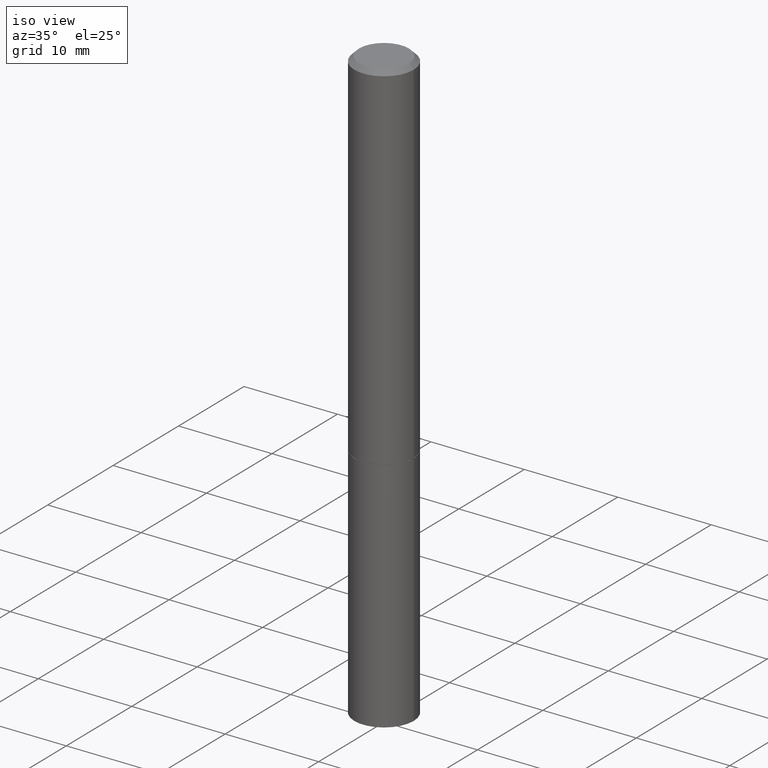
[diagram: clean part render]
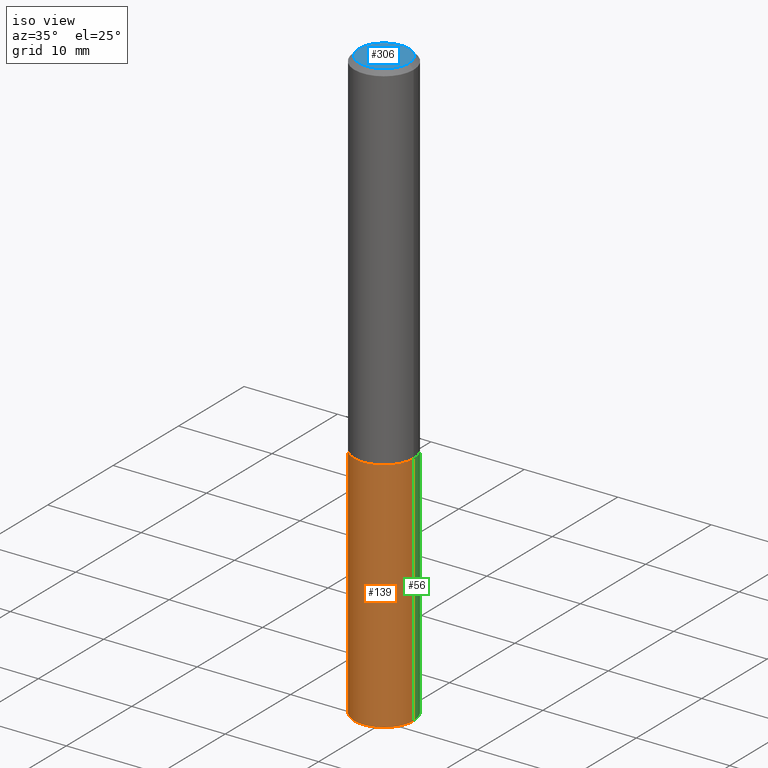
[diagram: same view with three faces highlighted in distinct colors, each labeled with its STEP entity id]
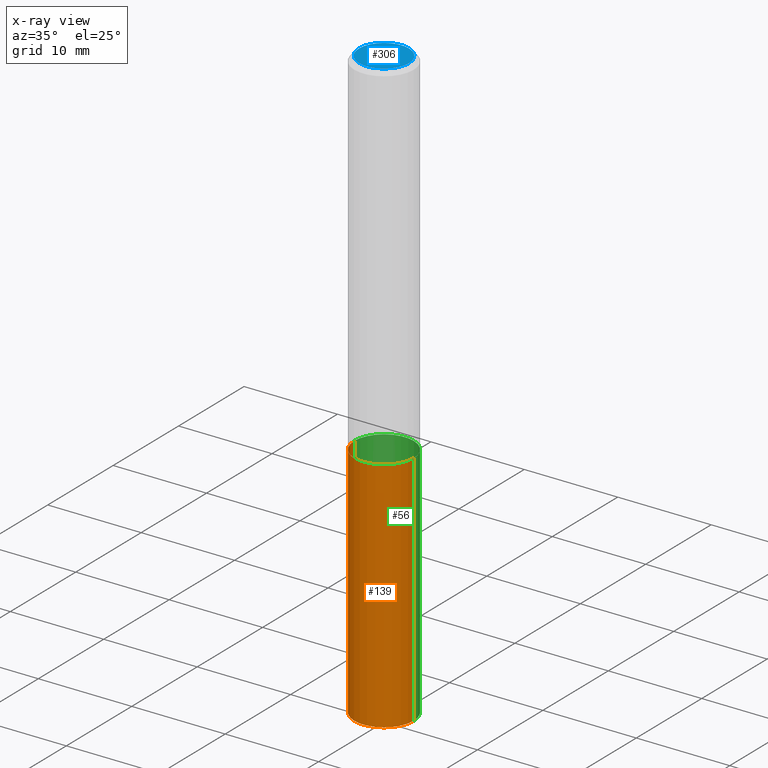
[diagram: x-ray of the same camera — body ghosted, the three highlighted faces saturated]
A machine part, iso view with three faces highlighted in distinct colors.
The next image is the same camera in x-ray (body ghosted, the three faces saturated) — at least one of them is partly hidden behind the body in this view.
Their STEP definitions:

[orange] entity #139 — the highlighted cylindrical surface (edge-blend (fillet) strip) has radius 3.175 mm, axis along (-0, 0, 1).
#10 = ORIENTED_EDGE ( 'NONE', *, *, #73, .T. ) ;
#12 = DIRECTION ( 'NONE',  ( 1.000000000000000000, -6.982962677686270655E-15, 0.000000000000000000 ) ) ;
#13 = ORIENTED_EDGE ( 'NONE', *, *, #134, .F. ) ;
#25 = VECTOR ( 'NONE', #226, 39.37007874015748143 ) ;
#57 = CARTESIAN_POINT ( 'NONE',  ( -0.1250000000000000000, -6.094784257986165933E-15, -2.500000000000000000 ) ) ;
#69 = AXIS2_PLACEMENT_3D ( 'NONE', #194, #188, #329 ) ;
#73 = EDGE_CURVE ( 'NONE', #338, #118, #319, .T. ) ;
#79 = FACE_OUTER_BOUND ( 'NONE', #272, .T. ) ;
#89 = VERTEX_POINT ( 'NONE', #296 ) ;
#104 = DIRECTION ( 'NONE',  ( -2.445468806185136877E-29, 3.491481338843145188E-15, 1.000000000000000000 ) ) ;
#118 = VERTEX_POINT ( 'NONE', #227 ) ;
#119 = AXIS2_PLACEMENT_3D ( 'NONE', #249, #163, #220 ) ;
#127 = EDGE_CURVE ( 'NONE', #338, #211, #162, .T. ) ;
#134 = EDGE_CURVE ( 'NONE', #211, #89, #159, .T. ) ;
#136 = CARTESIAN_POINT ( 'NONE',  ( 0.1250000000000000000, -8.728703347107833388E-16, 6.095220969744919741E-30 ) ) ;
#137 = CYLINDRICAL_SURFACE ( 'NONE', #119, 0.1250000000000000000 ) ;
#139 = ADVANCED_FACE ( 'NONE', ( #79 ), #137, .T. ) ;
#148 = CARTESIAN_POINT ( 'NONE',  ( 6.113672015462842613E-29, -8.728703347107864943E-15, -2.500000000000000000 ) ) ;
#159 = CIRCLE ( 'NONE', #69, 0.1250000000000000000 ) ;
#162 = LINE ( 'NONE', #257, #285 ) ;
#163 = DIRECTION ( 'NONE',  ( -2.445468806185136597E-29, 3.491481338843145583E-15, 1.000000000000000000 ) ) ;
#188 = DIRECTION ( 'NONE',  ( -2.445468806185136597E-29, 3.491481338843145583E-15, 1.000000000000000000 ) ) ;
#194 = CARTESIAN_POINT ( 'NONE',  ( 3.668203209277704895E-29, -5.237222008264718177E-15, -1.500000000000000222 ) ) ;
#211 = VERTEX_POINT ( 'NONE', #284 ) ;
#215 = DIRECTION ( 'NONE',  ( -2.445468806185136597E-29, 3.491481338843145583E-15, 1.000000000000000000 ) ) ;
#220 = DIRECTION ( 'NONE',  ( 1.000000000000000000, -6.982962677686266711E-15, 4.876176775795935793E-29 ) ) ;
#226 = DIRECTION ( 'NONE',  ( -2.445468806185136877E-29, 3.491481338843145188E-15, 1.000000000000000000 ) ) ;
#227 = CARTESIAN_POINT ( 'NONE',  ( 0.1250000000000000000, -9.601573681818648281E-15, -2.500000000000000000 ) ) ;
#237 = EDGE_CURVE ( 'NONE', #118, #89, #364, .T. ) ;
#249 = CARTESIAN_POINT ( 'NONE',  ( 0.000000000000000000, 0.000000000000000000, 0.000000000000000000 ) ) ;
#257 = CARTESIAN_POINT ( 'NONE',  ( -0.1250000000000000000, 8.881784197001252323E-16, -6.148668862818632227E-30 ) ) ;
#272 = EDGE_LOOP ( 'NONE', ( #278, #10, #348, #13 ) ) ;
#278 = ORIENTED_EDGE ( 'NONE', *, *, #127, .F. ) ;
#284 = CARTESIAN_POINT ( 'NONE',  ( -0.1250000000000000000, -6.094784257986165933E-15, -1.500000000000000222 ) ) ;
#285 = VECTOR ( 'NONE', #104, 39.37007874015748143 ) ;
#296 = CARTESIAN_POINT ( 'NONE',  ( 0.1250000000000000000, -6.110092342975501516E-15, -1.500000000000000222 ) ) ;
#319 = CIRCLE ( 'NONE', #342, 0.1250000000000000000 ) ;
#329 = DIRECTION ( 'NONE',  ( 1.000000000000000000, -6.982962677686262766E-15, 0.000000000000000000 ) ) ;
#338 = VERTEX_POINT ( 'NONE', #57 ) ;
#342 = AXIS2_PLACEMENT_3D ( 'NONE', #148, #215, #12 ) ;
#348 = ORIENTED_EDGE ( 'NONE', *, *, #237, .T. ) ;
#364 = LINE ( 'NONE', #136, #25 ) ;

[blue] entity #306 — the highlighted planar face has unit normal (0, -0, -1).
#41 = ORIENTED_EDGE ( 'NONE', *, *, #61, .T. ) ;
#61 = EDGE_CURVE ( 'NONE', #98, #266, #95, .T. ) ;
#75 = DIRECTION ( 'NONE',  ( 1.000000000000000000, -6.982962677686266711E-15, 4.876206205277401876E-29 ) ) ;
#83 = PLANE ( 'NONE',  #242 ) ;
#95 = CIRCLE ( 'NONE', #267, 0.1049999999999998296 ) ;
#98 = VERTEX_POINT ( 'NONE', #361 ) ;
#102 = CARTESIAN_POINT ( 'NONE',  ( 0.1049999999999998296, -8.238720831321564811E-16, -1.707404996039620013E-17 ) ) ;
#110 = DIRECTION ( 'NONE',  ( 2.438088387897960049E-29, -3.491481338843145188E-15, -1.000000000000000000 ) ) ;
#113 = CARTESIAN_POINT ( 'NONE',  ( 7.332110811570568410E-16, 0.1049999999999998296, -3.751425655587305558E-16 ) ) ;
#144 = ORIENTED_EDGE ( 'NONE', *, *, #166, .T. ) ;
#155 = CARTESIAN_POINT ( 'NONE',  ( 4.175405657340879278E-46, -5.961372681521788801E-32, -1.707404996040164512E-17 ) ) ;
#165 = CIRCLE ( 'NONE', #199, 0.1049999999999998296 ) ;
#166 = EDGE_CURVE ( 'NONE', #266, #98, #165, .T. ) ;
#168 = FACE_OUTER_BOUND ( 'NONE', #231, .T. ) ;
#181 = DIRECTION ( 'NONE',  ( 1.000000000000000000, -6.982962677686266711E-15, 4.876206205277401876E-29 ) ) ;
#199 = AXIS2_PLACEMENT_3D ( 'NONE', #246, #333, #75 ) ;
#200 = DIRECTION ( 'NONE',  ( -1.000000000000000000, 6.982962677686265922E-15, -4.876176775795935793E-29 ) ) ;
#231 = EDGE_LOOP ( 'NONE', ( #41, #144 ) ) ;
#242 = AXIS2_PLACEMENT_3D ( 'NONE', #113, #110, #200 ) ;
#246 = CARTESIAN_POINT ( 'NONE',  ( 4.175405657340879278E-46, -5.961372681521788801E-32, -1.707404996040164512E-17 ) ) ;
#266 = VERTEX_POINT ( 'NONE', #102 ) ;
#267 = AXIS2_PLACEMENT_3D ( 'NONE', #155, #347, #181 ) ;
#306 = ADVANCED_FACE ( 'NONE', ( #168 ), #83, .F. ) ;
#333 = DIRECTION ( 'NONE',  ( -2.445468806185136597E-29, 3.491481338843145583E-15, 1.000000000000000000 ) ) ;
#347 = DIRECTION ( 'NONE',  ( -2.445468806185136597E-29, 3.491481338843145583E-15, 1.000000000000000000 ) ) ;
#361 = CARTESIAN_POINT ( 'NONE',  ( -0.1049999999999998296, 7.681258945454878985E-16, -1.707404996040689597E-17 ) ) ;

[green] entity #56 — the highlighted cylindrical surface (edge-blend (fillet) strip) has radius 3.175 mm, axis along (-0, 0, 1).
#25 = VECTOR ( 'NONE', #226, 39.37007874015748143 ) ;
#30 = AXIS2_PLACEMENT_3D ( 'NONE', #143, #202, #288 ) ;
#46 = DIRECTION ( 'NONE',  ( -2.445468806185136597E-29, 3.491481338843145583E-15, 1.000000000000000000 ) ) ;
#48 = AXIS2_PLACEMENT_3D ( 'NONE', #190, #46, #254 ) ;
#56 = ADVANCED_FACE ( 'NONE', ( #182 ), #275, .T. ) ;
#57 = CARTESIAN_POINT ( 'NONE',  ( -0.1250000000000000000, -6.094784257986165933E-15, -2.500000000000000000 ) ) ;
#89 = VERTEX_POINT ( 'NONE', #296 ) ;
#104 = DIRECTION ( 'NONE',  ( -2.445468806185136877E-29, 3.491481338843145188E-15, 1.000000000000000000 ) ) ;
#116 = ORIENTED_EDGE ( 'NONE', *, *, #237, .F. ) ;
#118 = VERTEX_POINT ( 'NONE', #227 ) ;
#123 = EDGE_LOOP ( 'NONE', ( #124, #344, #145, #116 ) ) ;
#124 = ORIENTED_EDGE ( 'NONE', *, *, #253, .T. ) ;
#127 = EDGE_CURVE ( 'NONE', #338, #211, #162, .T. ) ;
#136 = CARTESIAN_POINT ( 'NONE',  ( 0.1250000000000000000, -8.728703347107833388E-16, 6.095220969744919741E-30 ) ) ;
#143 = CARTESIAN_POINT ( 'NONE',  ( 3.668203209277704895E-29, -5.237222008264718177E-15, -1.500000000000000222 ) ) ;
#145 = ORIENTED_EDGE ( 'NONE', *, *, #292, .F. ) ;
#162 = LINE ( 'NONE', #257, #285 ) ;
#178 = AXIS2_PLACEMENT_3D ( 'NONE', #350, #352, #184 ) ;
#182 = FACE_OUTER_BOUND ( 'NONE', #123, .T. ) ;
#184 = DIRECTION ( 'NONE',  ( 1.000000000000000000, -6.982962677686266711E-15, 4.876176775795935793E-29 ) ) ;
#190 = CARTESIAN_POINT ( 'NONE',  ( 6.113672015462842613E-29, -8.728703347107864943E-15, -2.500000000000000000 ) ) ;
#202 = DIRECTION ( 'NONE',  ( -2.445468806185136597E-29, 3.491481338843145583E-15, 1.000000000000000000 ) ) ;
#211 = VERTEX_POINT ( 'NONE', #284 ) ;
#212 = CIRCLE ( 'NONE', #48, 0.1250000000000000000 ) ;
#226 = DIRECTION ( 'NONE',  ( -2.445468806185136877E-29, 3.491481338843145188E-15, 1.000000000000000000 ) ) ;
#227 = CARTESIAN_POINT ( 'NONE',  ( 0.1250000000000000000, -9.601573681818648281E-15, -2.500000000000000000 ) ) ;
#237 = EDGE_CURVE ( 'NONE', #118, #89, #364, .T. ) ;
#253 = EDGE_CURVE ( 'NONE', #118, #338, #212, .T. ) ;
#254 = DIRECTION ( 'NONE',  ( 1.000000000000000000, -6.982962677686270655E-15, 0.000000000000000000 ) ) ;
#255 = CIRCLE ( 'NONE', #30, 0.1250000000000000000 ) ;
#257 = CARTESIAN_POINT ( 'NONE',  ( -0.1250000000000000000, 8.881784197001252323E-16, -6.148668862818632227E-30 ) ) ;
#275 = CYLINDRICAL_SURFACE ( 'NONE', #178, 0.1250000000000000000 ) ;
#284 = CARTESIAN_POINT ( 'NONE',  ( -0.1250000000000000000, -6.094784257986165933E-15, -1.500000000000000222 ) ) ;
#285 = VECTOR ( 'NONE', #104, 39.37007874015748143 ) ;
#288 = DIRECTION ( 'NONE',  ( 1.000000000000000000, -6.982962677686262766E-15, 0.000000000000000000 ) ) ;
#292 = EDGE_CURVE ( 'NONE', #89, #211, #255, .T. ) ;
#296 = CARTESIAN_POINT ( 'NONE',  ( 0.1250000000000000000, -6.110092342975501516E-15, -1.500000000000000222 ) ) ;
#338 = VERTEX_POINT ( 'NONE', #57 ) ;
#344 = ORIENTED_EDGE ( 'NONE', *, *, #127, .T. ) ;
#350 = CARTESIAN_POINT ( 'NONE',  ( 0.000000000000000000, 0.000000000000000000, 0.000000000000000000 ) ) ;
#352 = DIRECTION ( 'NONE',  ( -2.445468806185136597E-29, 3.491481338843145583E-15, 1.000000000000000000 ) ) ;
#364 = LINE ( 'NONE', #136, #25 ) ;